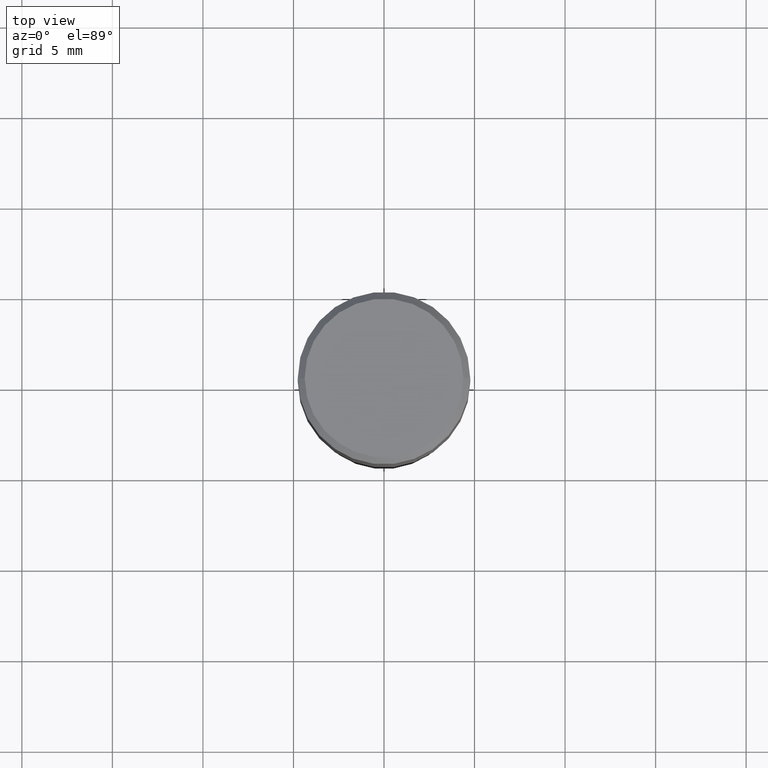
[diagram: clean part render]
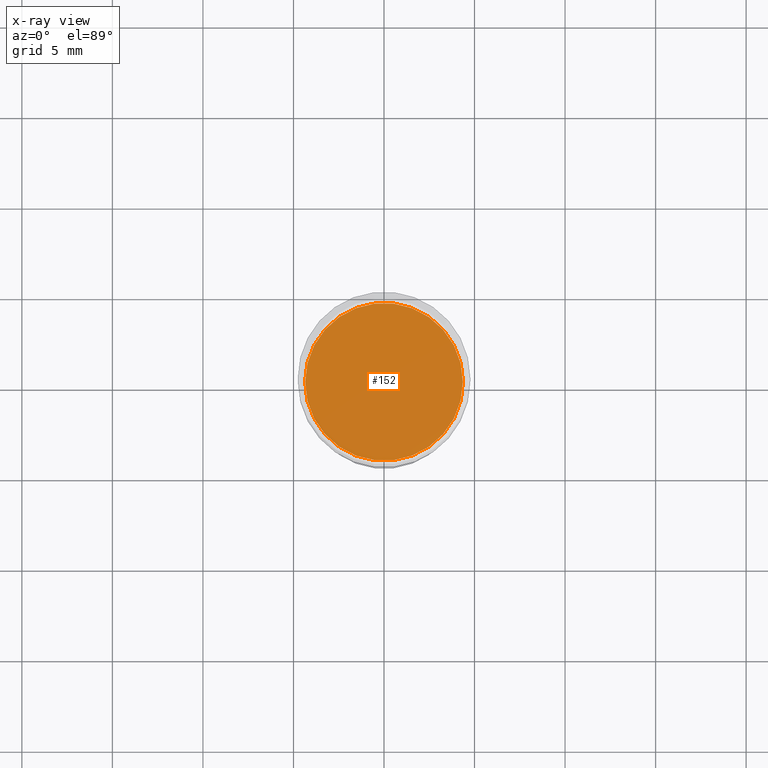
[diagram: x-ray — body ghosted, one internal face saturated and labeled with its STEP entity id]
A machine part, top view, then the same camera in x-ray: the body is ghosted and one INTERNAL B-rep face — a face not visible from any outside direction — is saturated and labeled: STEP entity #152.
In plain terms, the highlighted planar face has unit normal (-0, 0, 1).
Its self-contained STEP definition (entity closure, byte-faithful):
#16 = ORIENTED_EDGE ( 'NONE', *, *, #374, .F. ) ;
#38 = AXIS2_PLACEMENT_3D ( 'NONE', #232, #459, #351 ) ;
#45 = CARTESIAN_POINT ( 'NONE',  ( 1.222734403092568719E-29, -1.745740669421573186E-15, -0.5000000000000001110 ) ) ;
#53 = DIRECTION ( 'NONE',  ( -2.438088387897960049E-29, 3.491481338843145188E-15, 1.000000000000000000 ) ) ;
#66 = EDGE_CURVE ( 'NONE', #149, #442, #165, .T. ) ;
#75 = CARTESIAN_POINT ( 'NONE',  ( 0.1713999999999999690, -2.942620472376999223E-15, -0.5000000000000001110 ) ) ;
#107 = DIRECTION ( 'NONE',  ( -2.445468806185136597E-29, 3.491481338843145583E-15, 1.000000000000000000 ) ) ;
#149 = VERTEX_POINT ( 'NONE', #199 ) ;
#151 = EDGE_LOOP ( 'NONE', ( #16, #281 ) ) ;
#152 = ADVANCED_FACE ( 'NONE', ( #305 ), #344, .F. ) ;
#163 = CARTESIAN_POINT ( 'NONE',  ( 1.222734403092568719E-29, -1.745740669421573186E-15, -0.5000000000000001110 ) ) ;
#165 = CIRCLE ( 'NONE', #341, 0.1713999999999999690 ) ;
#186 = DIRECTION ( 'NONE',  ( 1.000000000000000000, -6.982962677686266711E-15, 0.000000000000000000 ) ) ;
#191 = DIRECTION ( 'NONE',  ( 1.000000000000000000, -6.982962677686265922E-15, 4.876176775795935793E-29 ) ) ;
#199 = CARTESIAN_POINT ( 'NONE',  ( -0.1713999999999999690, -5.252211931546505847E-16, -0.5000000000000001110 ) ) ;
#232 = CARTESIAN_POINT ( 'NONE',  ( 1.222734403092568719E-29, -1.745740669421573186E-15, -0.5000000000000001110 ) ) ;
#281 = ORIENTED_EDGE ( 'NONE', *, *, #66, .F. ) ;
#305 = FACE_OUTER_BOUND ( 'NONE', #151, .T. ) ;
#341 = AXIS2_PLACEMENT_3D ( 'NONE', #45, #107, #186 ) ;
#344 = PLANE ( 'NONE',  #355 ) ;
#351 = DIRECTION ( 'NONE',  ( 1.000000000000000000, -6.982962677686266711E-15, 0.000000000000000000 ) ) ;
#355 = AXIS2_PLACEMENT_3D ( 'NONE', #163, #53, #191 ) ;
#374 = EDGE_CURVE ( 'NONE', #442, #149, #445, .T. ) ;
#442 = VERTEX_POINT ( 'NONE', #75 ) ;
#445 = CIRCLE ( 'NONE', #38, 0.1713999999999999690 ) ;
#459 = DIRECTION ( 'NONE',  ( -2.445468806185136597E-29, 3.491481338843145583E-15, 1.000000000000000000 ) ) ;